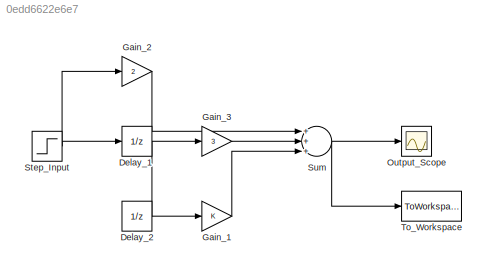
MODEL slx_0edd6622e6e7
KIND model
CONFIG AbsTol = auto
CONFIG EnableMultiTasking = off
CONFIG FixedStep = 1
CONFIG MaxStep = auto
CONFIG MinStep = auto
CONFIG RelTol = 1e-3
CONFIG SampleTimeConstraint = Unconstrained
CONFIG SolverName = FixedStepDiscrete
CONFIG StartTime = 0.0
CONFIG StopTime = 20
BLOCK [UnitDelay] Delay_1
  HasFrameUpgradeWarning = on
BLOCK [UnitDelay] Delay_2
  HasFrameUpgradeWarning = on
BLOCK [Gain] Gain_1
BLOCK [Gain] Gain_2
  Gain = 2
BLOCK [Gain] Gain_3
  Gain = 3
BLOCK [Scope] Output_Scope
  Floating = off
  GraphicalSettings = {"GraphicalSettings":{"LegacySettings":true,"Style":{"Style":{"PlotType":"Auto"}}}}
  NumInputPorts = 1
  WasSavedAsWebScope = on
BLOCK [Step] Step_Input
  SampleTime = 0
  Time = 0
BLOCK [Sum] Sum
  Inputs = +++
BLOCK [ToWorkspace] To_Workspace
  FixptAsFi = on
  MaxDataPoints = inf
  SampleTime = -1
  VariableName = y_out2
NET Delay_1:1 -> Delay_2:1, Gain_3:1
LINE Delay_2:1 -> Gain_1:1
LINE Gain_1:1 -> Sum:3
LINE Gain_2:1 -> Sum:1
LINE Gain_3:1 -> Sum:2
NET Step_Input:1 -> Delay_1:1, Gain_2:1
NET Sum:1 -> Output_Scope:1, To_Workspace:1
note: NET lines group one-source signal fan-out (src -> all destinations, sorted); 1:1 wires keep LINE
